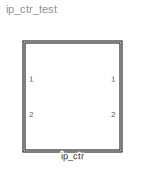
MODEL ip_ctr_test
KIND model
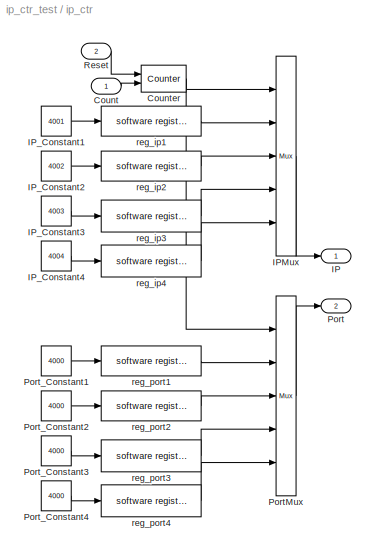
BLOCK [SubSystem] ip_ctr
  AttributesFormatString = IPs=4
  FunctionWithSeparateData = off
  MaskEnableString = on
  MaskHideContents = off
  MaskIconFrame = on
  MaskIconOpaque = on
  MaskIconRotate = none
  MaskIconUnits = autoscale
  MaskInitialization = ip_ctr_init(gcb,...\n    'numcomputers',numcomputers)
  MaskPortRotate = default
  MaskPromptString = Num IPs (Must be power of 2)
  MaskStyleString = edit
  MaskToolTipString = on
  MaskTunableValueString = on
  MaskType = ip_ctr
  MaskValueString = 4
  MaskVariables = numcomputers=@1;
  MaskVisibilityString = on
  MinAlgLoopOccurrences = off
  Opaque = off
  Ports = [2, 2]
  PropExecContextOutsideSubsystem = off
  RTWSystemCode = Auto
  RequestExecContextInheritance = off
  UserData = DataTag0
  UserDataPersistent = on
BLOCK [Inport] ip_ctr/Count
  IconDisplay = Port number
BLOCK [Reference] ip_ctr/Counter  REF=xbsIndex_r4/Counter
  Ports = [2, 1]
  SourceBlock = xbsIndex_r4/Counter
  SourceType = Xilinx Counter Block
  arith_type = Unsigned
  bin_pt = 0
  block_type = counter
  block_version = 11.4
  cnt_by_val = 1
  cnt_to = Inf
  cnt_type = Free Running
  dbl_ovrd = off
  en = on
  explicit_period = on
  has_advanced_control = 0
  implementation = Fabric
  infoedit = Hardware notes: Free running counters are the least expensive in hardware.  A count limited counter is implemented by combining a counter with a comparator.
  load_pin = off
  n_bits = 2
  operation = Up
  period = 1
  rst = on
  sg_icon_stat = 45,27,2,1,white,blue,0,d605779c,right,
  sg_mask_display = fprintf('','COMMENT: begin icon graphics');\npatch([0 1 1 0 ],[0 0 1 1 ],[0.77 0.82 0.91]);\npatch([0.333333 0.244444 0.377778 0.244444 0.333333 0.488889 0.533333 0.577778 0.755556 0.622222 0.488889 0.4 0.533333 0.4 0.488889 0.622222 0.755556 0.577778 0.533333 0.488889 0.333333 ],[0.111111 0.259259 0.481481 0.703704 0.851852 0.851852 0.777778 0.851852 0.851852 0.62963 0.851852 0.703704 0.481481 0....<+384ch>
  sggui_pos = -1,-1,-1,-1
  start_count = 0
  use_behavioral_HDL = off
  xl_area = [0,0,0,0,0,0,0]
  xl_use_area = off
BLOCK [Outport] ip_ctr/IP
  IconDisplay = Port number
BLOCK [Reference] ip_ctr/IPMux  REF=xbsIndex_r4/Mux
  Ports = [5, 1]
  SourceBlock = xbsIndex_r4/Mux
  SourceType = Xilinx Bus Multiplexer Block
  arith_type = Unsigned
  bin_pt = 14
  block_type = mux
  block_version = 11.4
  dbl_ovrd = off
  en = off
  has_advanced_control = 0
  inputs = 4
  latency = 3
  n_bits = 16
  overflow = Wrap
  precision = Full
  quantization = Truncate
  sg_icon_stat = 20,200,5,1,white,blue,3,641f70b6,right,
  sg_mask_display = fprintf('','COMMENT: begin icon graphics');\npatch([0 1 1 0 ],[0 0.142857 0.857143 1 ],[0.77 0.82 0.91]);\npatch([0.2 0.05 0.3 0.05 0.2 0.45 0.5 0.55 0.85 0.65 0.45 0.3 0.55 0.3 0.45 0.65 0.85 0.55 0.5 0.45 0.2 ],[0.46 0.475 0.5 0.525 0.54 0.54 0.535 0.54 0.54 0.52 0.54 0.525 0.5 0.475 0.46 0.48 0.46 0.46 0.465 0.46 0.46 ],[0.98 0.96 0.92]);\nplot([0 1 1 0 0 ],[0 0.142857 0.857143 1 0 ]);\nfprintf...<+392ch>
  sggui_pos = -1,-1,-1,-1
  xl_area = [0,0,0,0,0,0,0]
  xl_use_area = off
BLOCK [Constant] ip_ctr/IP_Constant1
  OutDataType = sfix(16)
  OutScaling = 2^0
  Value = 4001
BLOCK [Constant] ip_ctr/IP_Constant2
  OutDataType = sfix(16)
  OutScaling = 2^0
  Value = 4002
BLOCK [Constant] ip_ctr/IP_Constant3
  OutDataType = fixdt(1, 16)
  OutScaling = 2^0
  Value = 4003
BLOCK [Constant] ip_ctr/IP_Constant4
  OutDataType = fixdt(1, 16)
  OutScaling = 2^0
  Value = 4004
BLOCK [Outport] ip_ctr/Port
  IconDisplay = Port number
  Port = 2
BLOCK [Reference] ip_ctr/PortMux  REF=xbsIndex_r4/Mux
  Ports = [5, 1]
  SourceBlock = xbsIndex_r4/Mux
  SourceType = Xilinx Bus Multiplexer Block
  arith_type = Unsigned
  bin_pt = 14
  block_type = mux
  block_version = 11.4
  dbl_ovrd = off
  en = off
  has_advanced_control = 0
  inputs = 4
  latency = 3
  n_bits = 16
  overflow = Wrap
  precision = Full
  quantization = Truncate
  sg_icon_stat = 20,200,5,1,white,blue,3,641f70b6,right,
  sg_mask_display = fprintf('','COMMENT: begin icon graphics');\npatch([0 1 1 0 ],[0 0.142857 0.857143 1 ],[0.77 0.82 0.91]);\npatch([0.2 0.05 0.3 0.05 0.2 0.45 0.5 0.55 0.85 0.65 0.45 0.3 0.55 0.3 0.45 0.65 0.85 0.55 0.5 0.45 0.2 ],[0.46 0.475 0.5 0.525 0.54 0.54 0.535 0.54 0.54 0.52 0.54 0.525 0.5 0.475 0.46 0.48 0.46 0.46 0.465 0.46 0.46 ],[0.98 0.96 0.92]);\nplot([0 1 1 0 0 ],[0 0.142857 0.857143 1 0 ]);\nfprintf...<+392ch>
  sggui_pos = -1,-1,-1,-1
  xl_area = [0,0,0,0,0,0,0]
  xl_use_area = off
BLOCK [Constant] ip_ctr/Port_Constant1
  OutDataType = sfix(16)
  OutScaling = 2^0
  Value = 4000
BLOCK [Constant] ip_ctr/Port_Constant2
  OutDataType = sfix(16)
  OutScaling = 2^0
  Value = 4000
BLOCK [Constant] ip_ctr/Port_Constant3
  OutDataType = fixdt(1, 16)
  OutScaling = 2^0
  Value = 4000
BLOCK [Constant] ip_ctr/Port_Constant4
  OutDataType = fixdt(1, 16)
  OutScaling = 2^0
  Value = 4000
BLOCK [Inport] ip_ctr/Reset
  IconDisplay = Port number
  OutDataType = sfix(16)
  OutScaling = 2^0
  Port = 2
BLOCK [Reference] ip_ctr/reg_ip1  REF=xps_library/software register  (lib defined in mdl_00b5cec29cd0, mdl_02ab6ecaa3d1, +5 more)
  FunctionWithSeparateData = off
  Ports = [1, 1]
  RTWMemSecDataConstants = Inherit from model
  RTWMemSecDataInternal = Inherit from model
  RTWMemSecDataParameters = Inherit from model
  RTWMemSecFuncExecute = Inherit from model
  RTWMemSecFuncInitTerm = Inherit from model
  ShowPortLabels = FromPortIcon
  SourceBlock = xps_library/software register
  SystemSampleTime = -1
  Tag = xps:sw_reg
  arith_type = Unsigned
  bin_pt = 0
  bitwidth = 32
  gw_name = untitled_ip_ctr_reg_ip1_user_data_out
  io_dir = From Processor
  sample_period = 1
BLOCK [Reference] ip_ctr/reg_ip2  REF=xps_library/software register  (lib defined in mdl_00b5cec29cd0, mdl_02ab6ecaa3d1, +5 more)
  FunctionWithSeparateData = off
  Ports = [1, 1]
  RTWMemSecDataConstants = Inherit from model
  RTWMemSecDataInternal = Inherit from model
  RTWMemSecDataParameters = Inherit from model
  RTWMemSecFuncExecute = Inherit from model
  RTWMemSecFuncInitTerm = Inherit from model
  ShowPortLabels = FromPortIcon
  SourceBlock = xps_library/software register
  SystemSampleTime = -1
  Tag = xps:sw_reg
  arith_type = Unsigned
  bin_pt = 0
  bitwidth = 32
  gw_name = untitled_ip_ctr_reg_ip2_user_data_out
  io_dir = From Processor
  sample_period = 1
BLOCK [Reference] ip_ctr/reg_ip3  REF=xps_library/software register  (lib defined in mdl_00b5cec29cd0, mdl_02ab6ecaa3d1, +5 more)
  FunctionWithSeparateData = off
  Ports = [1, 1]
  RTWMemSecDataConstants = Inherit from model
  RTWMemSecDataInternal = Inherit from model
  RTWMemSecDataParameters = Inherit from model
  RTWMemSecFuncExecute = Inherit from model
  RTWMemSecFuncInitTerm = Inherit from model
  ShowPortLabels = FromPortIcon
  SourceBlock = xps_library/software register
  SystemSampleTime = -1
  Tag = xps:sw_reg
  arith_type = Unsigned
  bin_pt = 0
  bitwidth = 32
  gw_name = untitled_ip_ctr_reg_ip3_user_data_out
  io_dir = From Processor
  sample_period = 1
BLOCK [Reference] ip_ctr/reg_ip4  REF=xps_library/software register  (lib defined in mdl_00b5cec29cd0, mdl_02ab6ecaa3d1, +5 more)
  FunctionWithSeparateData = off
  Ports = [1, 1]
  RTWMemSecDataConstants = Inherit from model
  RTWMemSecDataInternal = Inherit from model
  RTWMemSecDataParameters = Inherit from model
  RTWMemSecFuncExecute = Inherit from model
  RTWMemSecFuncInitTerm = Inherit from model
  ShowPortLabels = FromPortIcon
  SourceBlock = xps_library/software register
  SystemSampleTime = -1
  Tag = xps:sw_reg
  arith_type = Unsigned
  bin_pt = 0
  bitwidth = 32
  gw_name = untitled_ip_ctr_reg_ip4_user_data_out
  io_dir = From Processor
  sample_period = 1
BLOCK [Reference] ip_ctr/reg_port1  REF=xps_library/software register  (lib defined in mdl_00b5cec29cd0, mdl_02ab6ecaa3d1, +5 more)
  FunctionWithSeparateData = off
  Ports = [1, 1]
  RTWMemSecDataConstants = Inherit from model
  RTWMemSecDataInternal = Inherit from model
  RTWMemSecDataParameters = Inherit from model
  RTWMemSecFuncExecute = Inherit from model
  RTWMemSecFuncInitTerm = Inherit from model
  ShowPortLabels = FromPortIcon
  SourceBlock = xps_library/software register
  SystemSampleTime = -1
  Tag = xps:sw_reg
  arith_type = Unsigned
  bin_pt = 0
  bitwidth = 32
  gw_name = untitled_ip_ctr_reg_port1_user_data_out
  io_dir = From Processor
  sample_period = 1
BLOCK [Reference] ip_ctr/reg_port2  REF=xps_library/software register  (lib defined in mdl_00b5cec29cd0, mdl_02ab6ecaa3d1, +5 more)
  FunctionWithSeparateData = off
  Ports = [1, 1]
  RTWMemSecDataConstants = Inherit from model
  RTWMemSecDataInternal = Inherit from model
  RTWMemSecDataParameters = Inherit from model
  RTWMemSecFuncExecute = Inherit from model
  RTWMemSecFuncInitTerm = Inherit from model
  ShowPortLabels = FromPortIcon
  SourceBlock = xps_library/software register
  SystemSampleTime = -1
  Tag = xps:sw_reg
  arith_type = Unsigned
  bin_pt = 0
  bitwidth = 32
  gw_name = untitled_ip_ctr_reg_port2_user_data_out
  io_dir = From Processor
  sample_period = 1
BLOCK [Reference] ip_ctr/reg_port3  REF=xps_library/software register  (lib defined in mdl_00b5cec29cd0, mdl_02ab6ecaa3d1, +5 more)
  FunctionWithSeparateData = off
  Ports = [1, 1]
  RTWMemSecDataConstants = Inherit from model
  RTWMemSecDataInternal = Inherit from model
  RTWMemSecDataParameters = Inherit from model
  RTWMemSecFuncExecute = Inherit from model
  RTWMemSecFuncInitTerm = Inherit from model
  ShowPortLabels = FromPortIcon
  SourceBlock = xps_library/software register
  SystemSampleTime = -1
  Tag = xps:sw_reg
  arith_type = Unsigned
  bin_pt = 0
  bitwidth = 32
  gw_name = untitled_ip_ctr_reg_port3_user_data_out
  io_dir = From Processor
  sample_period = 1
BLOCK [Reference] ip_ctr/reg_port4  REF=xps_library/software register  (lib defined in mdl_00b5cec29cd0, mdl_02ab6ecaa3d1, +5 more)
  FunctionWithSeparateData = off
  Ports = [1, 1]
  RTWMemSecDataConstants = Inherit from model
  RTWMemSecDataInternal = Inherit from model
  RTWMemSecDataParameters = Inherit from model
  RTWMemSecFuncExecute = Inherit from model
  RTWMemSecFuncInitTerm = Inherit from model
  ShowPortLabels = FromPortIcon
  SourceBlock = xps_library/software register
  SystemSampleTime = -1
  Tag = xps:sw_reg
  arith_type = Unsigned
  bin_pt = 0
  bitwidth = 32
  gw_name = untitled_ip_ctr_reg_port4_user_data_out
  io_dir = From Processor
  sample_period = 1
LINE ip_ctr/Count:1 -> ip_ctr/Counter:2
NET ip_ctr/Counter:1 -> ip_ctr/IPMux:1, ip_ctr/PortMux:1
LINE ip_ctr/IPMux:1 -> ip_ctr/IP:1
LINE ip_ctr/IP_Constant1:1 -> ip_ctr/reg_ip1:1
LINE ip_ctr/IP_Constant2:1 -> ip_ctr/reg_ip2:1
LINE ip_ctr/IP_Constant3:1 -> ip_ctr/reg_ip3:1
LINE ip_ctr/IP_Constant4:1 -> ip_ctr/reg_ip4:1
LINE ip_ctr/PortMux:1 -> ip_ctr/Port:1
LINE ip_ctr/Port_Constant1:1 -> ip_ctr/reg_port1:1
LINE ip_ctr/Port_Constant2:1 -> ip_ctr/reg_port2:1
LINE ip_ctr/Port_Constant3:1 -> ip_ctr/reg_port3:1
LINE ip_ctr/Port_Constant4:1 -> ip_ctr/reg_port4:1
LINE ip_ctr/Reset:1 -> ip_ctr/Counter:1
LINE ip_ctr/reg_ip1:1 -> ip_ctr/IPMux:2
LINE ip_ctr/reg_ip2:1 -> ip_ctr/IPMux:3
LINE ip_ctr/reg_ip3:1 -> ip_ctr/IPMux:4
LINE ip_ctr/reg_ip4:1 -> ip_ctr/IPMux:5
LINE ip_ctr/reg_port1:1 -> ip_ctr/PortMux:2
LINE ip_ctr/reg_port2:1 -> ip_ctr/PortMux:3
LINE ip_ctr/reg_port3:1 -> ip_ctr/PortMux:4
LINE ip_ctr/reg_port4:1 -> ip_ctr/PortMux:5
note: NET lines group one-source signal fan-out (src -> all destinations, sorted); 1:1 wires keep LINE
